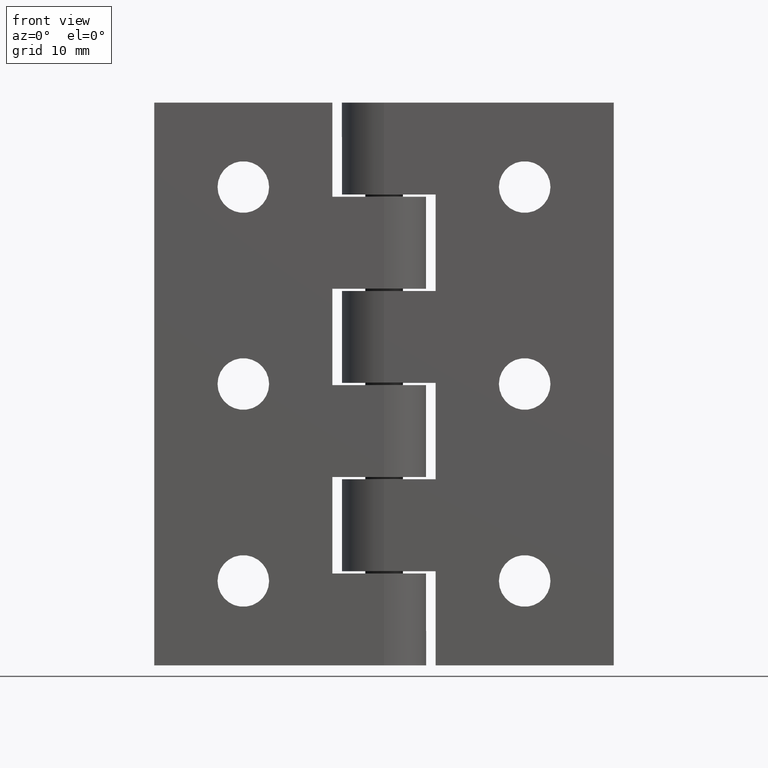
[diagram: clean part render]
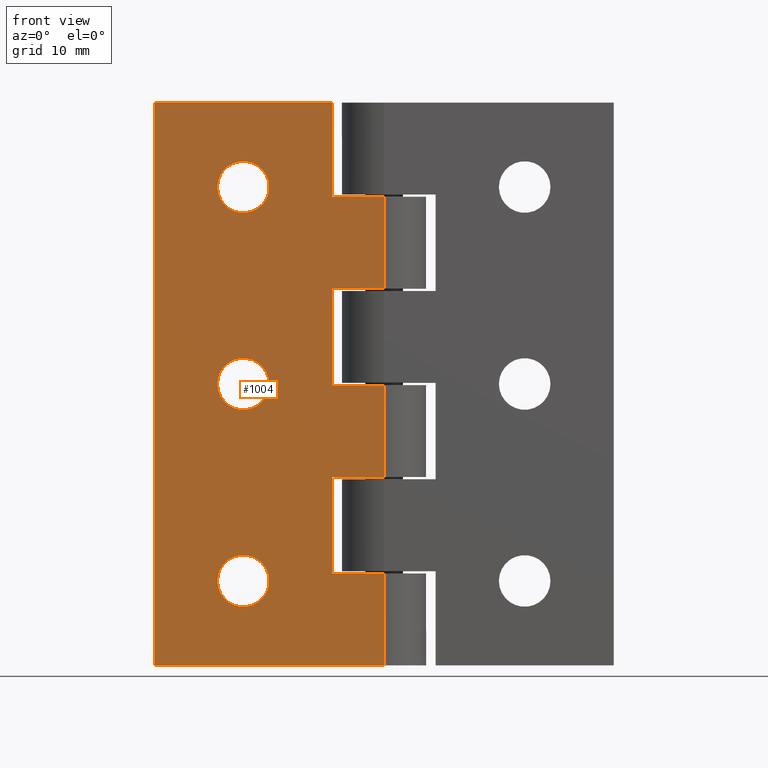
[diagram: same view with one face highlighted and labeled with its STEP entity id]
A machine part, front view. The second image highlights one B-rep face of the part: STEP entity #1004.
In plain terms, the highlighted planar face has unit normal (0, -1, 0).
Its self-contained STEP definition (entity closure, byte-faithful):
#49=FACE_BOUND('',#238,.T.);
#50=FACE_BOUND('',#239,.T.);
#51=FACE_BOUND('',#240,.T.);
#93=PLANE('',#1083);
#126=CIRCLE('',#1084,2.75);
#127=CIRCLE('',#1085,2.75);
#128=CIRCLE('',#1086,2.75);
#170=FACE_OUTER_BOUND('',#237,.T.);
#237=EDGE_LOOP('',(#774,#775,#776,#777,#778,#779,#780,#781,#782,#783,#784,
#785,#786,#787));
#238=EDGE_LOOP('',(#788));
#239=EDGE_LOOP('',(#789));
#240=EDGE_LOOP('',(#790));
#343=LINE('',#1543,#421);
#346=LINE('',#1549,#424);
#348=LINE('',#1556,#426);
#349=LINE('',#1560,#427);
#350=LINE('',#1565,#428);
#352=LINE('',#1573,#430);
#354=LINE('',#1580,#432);
#355=LINE('',#1584,#433);
#356=LINE('',#1588,#434);
#357=LINE('',#1589,#435);
#358=LINE('',#1591,#436);
#359=LINE('',#1593,#437);
#360=LINE('',#1595,#438);
#361=LINE('',#1596,#439);
#421=VECTOR('',#1212,10.04);
#424=VECTOR('',#1217,5.50000000000001);
#426=VECTOR('',#1225,10.28);
#427=VECTOR('',#1230,5.50000000000001);
#428=VECTOR('',#1235,5.5);
#430=VECTOR('',#1243,5.5);
#432=VECTOR('',#1251,10.28);
#433=VECTOR('',#1256,5.5);
#434=VECTOR('',#1261,9.8);
#435=VECTOR('',#1262,9.8);
#436=VECTOR('',#1263,19.);
#437=VECTOR('',#1264,60.);
#438=VECTOR('',#1265,24.5);
#439=VECTOR('',#1266,9.8);
#502=VERTEX_POINT('',#1540);
#503=VERTEX_POINT('',#1542);
#504=VERTEX_POINT('',#1546);
#505=VERTEX_POINT('',#1548);
#507=VERTEX_POINT('',#1554);
#508=VERTEX_POINT('',#1558);
#510=VERTEX_POINT('',#1564);
#512=VERTEX_POINT('',#1570);
#513=VERTEX_POINT('',#1572);
#515=VERTEX_POINT('',#1578);
#516=VERTEX_POINT('',#1582);
#518=VERTEX_POINT('',#1590);
#519=VERTEX_POINT('',#1592);
#520=VERTEX_POINT('',#1594);
#521=VERTEX_POINT('',#1597);
#522=VERTEX_POINT('',#1599);
#523=VERTEX_POINT('',#1601);
#602=EDGE_CURVE('',#503,#502,#343,.T.);
#605=EDGE_CURVE('',#505,#504,#346,.T.);
#609=EDGE_CURVE('',#504,#507,#348,.T.);
#611=EDGE_CURVE('',#507,#508,#349,.T.);
#613=EDGE_CURVE('',#510,#503,#350,.T.);
#617=EDGE_CURVE('',#513,#512,#352,.T.);
#621=EDGE_CURVE('',#512,#515,#354,.T.);
#623=EDGE_CURVE('',#515,#516,#355,.T.);
#625=EDGE_CURVE('',#508,#513,#356,.T.);
#626=EDGE_CURVE('',#516,#510,#357,.T.);
#627=EDGE_CURVE('',#518,#502,#358,.T.);
#628=EDGE_CURVE('',#519,#518,#359,.T.);
#629=EDGE_CURVE('',#519,#520,#360,.T.);
#630=EDGE_CURVE('',#520,#505,#361,.T.);
#631=EDGE_CURVE('',#521,#521,#126,.T.);
#632=EDGE_CURVE('',#522,#522,#127,.T.);
#633=EDGE_CURVE('',#523,#523,#128,.T.);
#774=ORIENTED_EDGE('',*,*,#605,.T.);
#775=ORIENTED_EDGE('',*,*,#609,.T.);
#776=ORIENTED_EDGE('',*,*,#611,.T.);
#777=ORIENTED_EDGE('',*,*,#625,.T.);
#778=ORIENTED_EDGE('',*,*,#617,.T.);
#779=ORIENTED_EDGE('',*,*,#621,.T.);
#780=ORIENTED_EDGE('',*,*,#623,.T.);
#781=ORIENTED_EDGE('',*,*,#626,.T.);
#782=ORIENTED_EDGE('',*,*,#613,.T.);
#783=ORIENTED_EDGE('',*,*,#602,.T.);
#784=ORIENTED_EDGE('',*,*,#627,.F.);
#785=ORIENTED_EDGE('',*,*,#628,.F.);
#786=ORIENTED_EDGE('',*,*,#629,.T.);
#787=ORIENTED_EDGE('',*,*,#630,.T.);
#788=ORIENTED_EDGE('',*,*,#631,.T.);
#789=ORIENTED_EDGE('',*,*,#632,.T.);
#790=ORIENTED_EDGE('',*,*,#633,.T.);
#1004=ADVANCED_FACE('',(#170,#49,#50,#51),#93,.T.);
#1083=AXIS2_PLACEMENT_3D('',#1587,#1259,#1260);
#1084=AXIS2_PLACEMENT_3D('',#1598,#1267,#1268);
#1085=AXIS2_PLACEMENT_3D('',#1600,#1269,#1270);
#1086=AXIS2_PLACEMENT_3D('',#1602,#1271,#1272);
#1212=DIRECTION('',(4.42319930129544E-16,0.,1.));
#1217=DIRECTION('',(-1.,0.,0.));
#1225=DIRECTION('',(4.31993394795781E-16,0.,1.));
#1230=DIRECTION('',(1.,0.,0.));
#1235=DIRECTION('',(-1.,0.,0.));
#1243=DIRECTION('',(-1.,0.,0.));
#1251=DIRECTION('',(2.1599669739789E-16,0.,1.));
#1256=DIRECTION('',(1.,0.,0.));
#1259=DIRECTION('center_axis',(0.,-1.,0.));
#1260=DIRECTION('ref_axis',(1.,0.,0.));
#1261=DIRECTION('',(0.,0.,1.));
#1262=DIRECTION('',(0.,0.,1.));
#1263=DIRECTION('',(1.,0.,0.));
#1264=DIRECTION('',(0.,0.,1.));
#1265=DIRECTION('',(1.,0.,0.));
#1266=DIRECTION('',(0.,0.,1.));
#1267=DIRECTION('center_axis',(0.,1.,0.));
#1268=DIRECTION('ref_axis',(1.,1.09967340925723E-16,0.));
#1269=DIRECTION('center_axis',(0.,1.,0.));
#1270=DIRECTION('ref_axis',(1.,1.09967340925723E-16,0.));
#1271=DIRECTION('center_axis',(0.,1.,0.));
#1272=DIRECTION('ref_axis',(1.,1.09967340925723E-16,0.));
#1540=CARTESIAN_POINT('',(19.,0.,60.));
#1542=CARTESIAN_POINT('',(19.,0.,49.96));
#1543=CARTESIAN_POINT('',(19.,0.,30.));
#1546=CARTESIAN_POINT('',(19.,0.,9.8));
#1548=CARTESIAN_POINT('',(24.5,0.,9.8));
#1549=CARTESIAN_POINT('',(9.49999999999999,0.,9.8));
#1554=CARTESIAN_POINT('',(19.,0.,20.08));
#1556=CARTESIAN_POINT('',(19.,0.,10.04));
#1558=CARTESIAN_POINT('',(24.5,0.,20.08));
#1560=CARTESIAN_POINT('',(14.5,0.,20.08));
#1564=CARTESIAN_POINT('',(24.5,0.,49.96));
#1565=CARTESIAN_POINT('',(9.5,0.,49.96));
#1570=CARTESIAN_POINT('',(19.,0.,29.88));
#1572=CARTESIAN_POINT('',(24.5,0.,29.88));
#1573=CARTESIAN_POINT('',(9.5,0.,29.88));
#1578=CARTESIAN_POINT('',(19.,0.,40.16));
#1580=CARTESIAN_POINT('',(19.,0.,20.08));
#1582=CARTESIAN_POINT('',(24.5,0.,40.16));
#1584=CARTESIAN_POINT('',(14.5,0.,40.16));
#1587=CARTESIAN_POINT('Origin',(0.,0.,0.));
#1588=CARTESIAN_POINT('',(24.5,0.,0.));
#1589=CARTESIAN_POINT('',(24.5,0.,0.));
#1590=CARTESIAN_POINT('',(0.,0.,60.));
#1591=CARTESIAN_POINT('',(0.,0.,60.));
#1592=CARTESIAN_POINT('',(0.,0.,0.));
#1593=CARTESIAN_POINT('',(0.,0.,0.));
#1594=CARTESIAN_POINT('',(24.5,0.,0.));
#1595=CARTESIAN_POINT('',(0.,0.,0.));
#1596=CARTESIAN_POINT('',(24.5,0.,0.));
#1597=CARTESIAN_POINT('',(6.75,8.07812837079419E-16,51.));
#1598=CARTESIAN_POINT('Origin',(9.5,1.11022302462516E-15,51.));
#1599=CARTESIAN_POINT('',(6.75,8.07812837079419E-16,9.));
#1600=CARTESIAN_POINT('Origin',(9.5,1.11022302462516E-15,9.));
#1601=CARTESIAN_POINT('',(6.75,8.07812837079419E-16,30.));
#1602=CARTESIAN_POINT('Origin',(9.5,1.11022302462516E-15,30.));